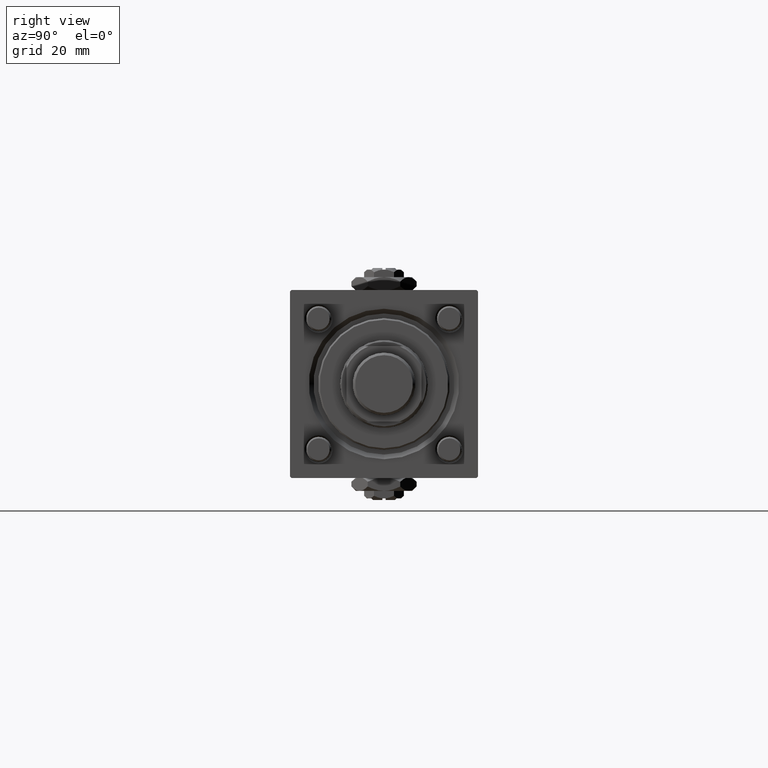
[diagram: clean part render]
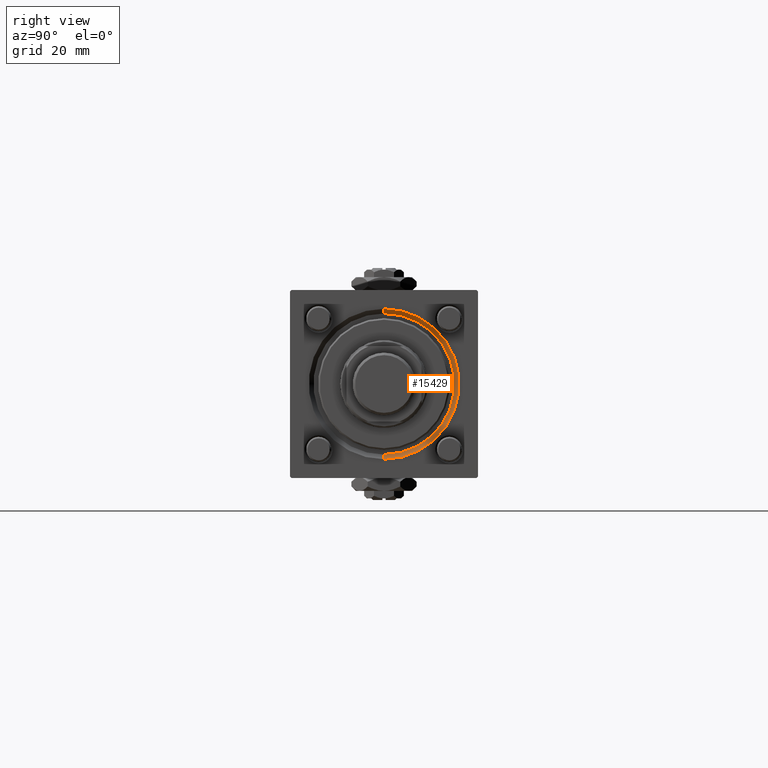
[diagram: same view with one face highlighted and labeled with its STEP entity id]
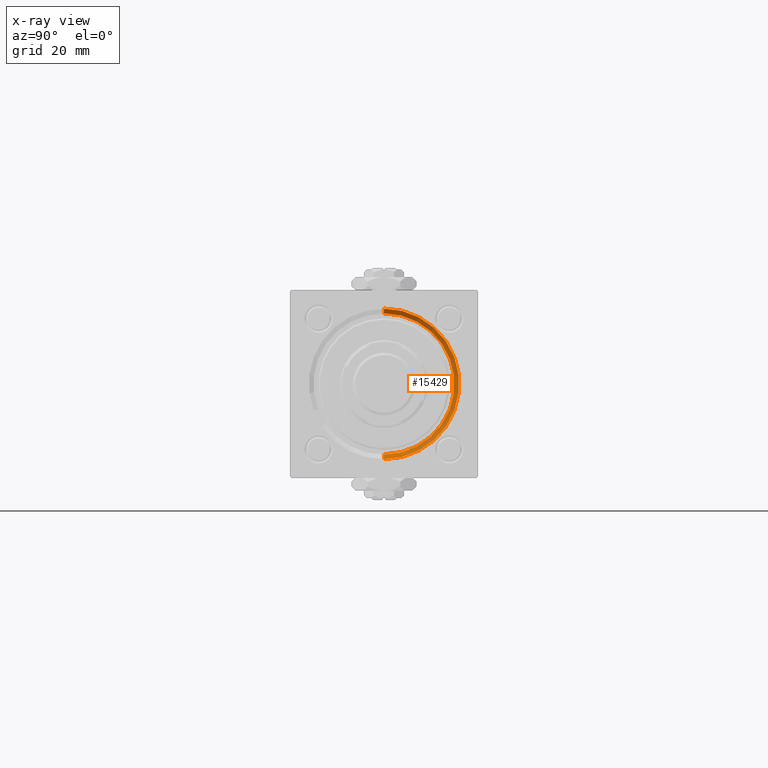
[diagram: x-ray of the same camera — body ghosted, the highlighted face saturated]
A machine part, right view. The second image highlights one B-rep face of the part: STEP entity #15429.
The next image is the same camera in x-ray: the body ghosted, the highlighted face saturated — about 0% of this face is hidden behind the body in this view.
In plain terms, the highlighted conical surface has half-angle 45 deg.
Its self-contained STEP definition (entity closure, byte-faithful):
#2500 = EDGE_CURVE ( 'NONE', #53408, #23513, #9689, .T. ) ;
#4485 = CARTESIAN_POINT ( 'NONE',  ( 146.4999999999999432, 0.000000000000000000, 0.000000000000000000 ) ) ;
#4715 = EDGE_LOOP ( 'NONE', ( #20329, #27843, #24478, #13258 ) ) ;
#4791 = FACE_OUTER_BOUND ( 'NONE', #4715, .T. ) ;
#5284 = DIRECTION ( 'NONE',  ( 1.000000000000000000, 0.000000000000000000, 0.000000000000000000 ) ) ;
#5546 = CIRCLE ( 'NONE', #11256, 24.00000000000003908 ) ;
#5864 = DIRECTION ( 'NONE',  ( 0.000000000000000000, 0.000000000000000000, 1.000000000000000000 ) ) ;
#8541 = CARTESIAN_POINT ( 'NONE',  ( 148.0000000000000000, 0.000000000000000000, 0.000000000000000000 ) ) ;
#9689 = LINE ( 'NONE', #28001, #11191 ) ;
#10348 = CARTESIAN_POINT ( 'NONE',  ( 146.4999999999999432, 0.000000000000000000, 0.000000000000000000 ) ) ;
#11191 = VECTOR ( 'NONE', #41792, 1000.000000000000000 ) ;
#11256 = AXIS2_PLACEMENT_3D ( 'NONE', #8541, #46058, #26550 ) ;
#11777 = EDGE_CURVE ( 'NONE', #25225, #44298, #39882, .T. ) ;
#13258 = ORIENTED_EDGE ( 'NONE', *, *, #53743, .F. ) ;
#15303 = CARTESIAN_POINT ( 'NONE',  ( 146.4999999999999432, 0.000000000000000000, -22.50000000000000355 ) ) ;
#15429 = ADVANCED_FACE ( 'NONE', ( #4791 ), #42098, .F. ) ;
#20329 = ORIENTED_EDGE ( 'NONE', *, *, #2500, .F. ) ;
#20894 = VECTOR ( 'NONE', #40185, 1000.000000000000000 ) ;
#23513 = VERTEX_POINT ( 'NONE', #28360 ) ;
#24478 = ORIENTED_EDGE ( 'NONE', *, *, #11777, .T. ) ;
#24493 = EDGE_CURVE ( 'NONE', #25225, #53408, #57635, .T. ) ;
#25225 = VERTEX_POINT ( 'NONE', #15303 ) ;
#26550 = DIRECTION ( 'NONE',  ( 0.000000000000000000, 0.000000000000000000, 1.000000000000000000 ) ) ;
#27843 = ORIENTED_EDGE ( 'NONE', *, *, #24493, .F. ) ;
#28001 = CARTESIAN_POINT ( 'NONE',  ( 146.4999999999999432, 2.755455298081545172E-15, 22.50000000000000355 ) ) ;
#28360 = CARTESIAN_POINT ( 'NONE',  ( 148.0000000000000000, 2.939152317953652628E-15, 24.00000000000003908 ) ) ;
#32935 = CARTESIAN_POINT ( 'NONE',  ( 148.0000000000000000, 0.000000000000000000, -24.00000000000003908 ) ) ;
#34412 = AXIS2_PLACEMENT_3D ( 'NONE', #4485, #41989, #46203 ) ;
#39882 = LINE ( 'NONE', #43803, #20894 ) ;
#40185 = DIRECTION ( 'NONE',  ( 0.7071067811865524577, 0.000000000000000000, -0.7071067811865426878 ) ) ;
#41792 = DIRECTION ( 'NONE',  ( 0.7071067811865524577, 8.659560562354874926E-17, 0.7071067811865426878 ) ) ;
#41989 = DIRECTION ( 'NONE',  ( 1.000000000000000000, 0.000000000000000000, 0.000000000000000000 ) ) ;
#42098 = CONICAL_SURFACE ( 'NONE', #34412, 22.50000000000000355, 0.7853981633974415066 ) ;
#43803 = CARTESIAN_POINT ( 'NONE',  ( 146.4999999999999432, 0.000000000000000000, -22.50000000000000355 ) ) ;
#44298 = VERTEX_POINT ( 'NONE', #32935 ) ;
#46058 = DIRECTION ( 'NONE',  ( -1.000000000000000000, 0.000000000000000000, -0.000000000000000000 ) ) ;
#46203 = DIRECTION ( 'NONE',  ( 0.000000000000000000, 0.000000000000000000, -1.000000000000000000 ) ) ;
#53408 = VERTEX_POINT ( 'NONE', #58130 ) ;
#53743 = EDGE_CURVE ( 'NONE', #23513, #44298, #5546, .T. ) ;
#55723 = AXIS2_PLACEMENT_3D ( 'NONE', #10348, #5284, #5864 ) ;
#57635 = CIRCLE ( 'NONE', #55723, 22.50000000000000355 ) ;
#58130 = CARTESIAN_POINT ( 'NONE',  ( 146.4999999999999432, 2.755455298081545172E-15, 22.50000000000000355 ) ) ;